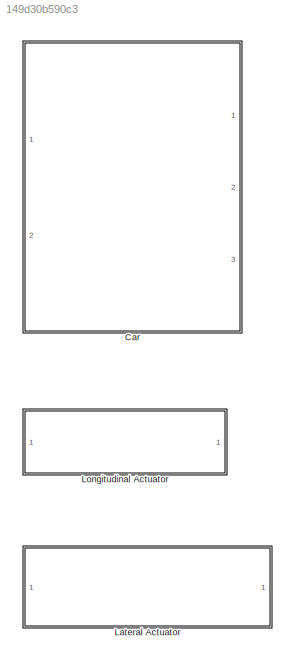
MODEL slx_149d30b590c3
KIND library
CONFIG AbsTol = auto
CONFIG FixedStep = auto
CONFIG MaxStep = auto
CONFIG MinStep = auto
CONFIG RelTol = 1e-3
CONFIG SampleTimeConstraint = Unconstrained
CONFIG Solver = ode45
CONFIG SolverMode = Auto
CONFIG SolverName = ode45
CONFIG StartTime = 0.0
CONFIG StopTime = 10.0
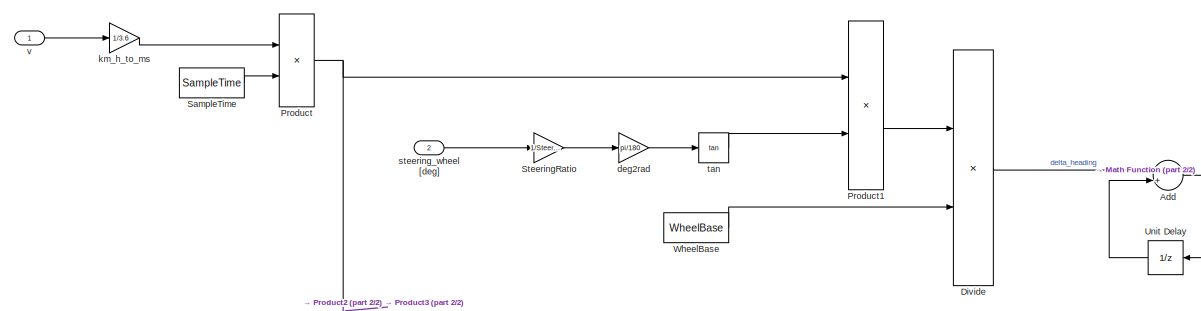
[diagram: Car - part 1/2, top left region]
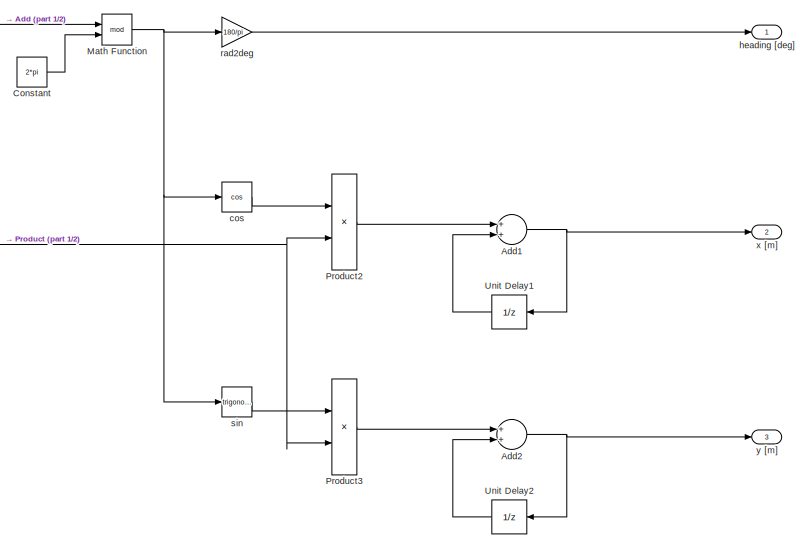
[diagram: Car - part 2/2, right side, full height]
BLOCK [SubSystem] Car
  Ports = [2, 3]
  RequestExecContextInheritance = off
  Variant = off
BLOCK [Sum] Car/Add
  InputSameDT = off
  OutDataTypeStr = Inherit: Inherit via internal rule
  Ports = [2, 1]
  SaturateOnIntegerOverflow = off
BLOCK [Sum] Car/Add1
  InputSameDT = off
  OutDataTypeStr = Inherit: Inherit via internal rule
  Ports = [2, 1]
  SaturateOnIntegerOverflow = off
BLOCK [Sum] Car/Add2
  InputSameDT = off
  OutDataTypeStr = Inherit: Inherit via internal rule
  Ports = [2, 1]
  SaturateOnIntegerOverflow = off
BLOCK [Constant] Car/Constant
  Value = 2*pi
BLOCK [Product] Car/Divide
  InputSameDT = off
  Inputs = */
  OutDataTypeStr = Inherit: Inherit via internal rule
  Ports = [2, 1]
  RndMeth = Floor
  SaturateOnIntegerOverflow = off
BLOCK [Math] Car/Math Function
  Operator = mod
  OutputSignalType = real
  Ports = [2, 1]
BLOCK [Product] Car/Product
  InputSameDT = off
  OutDataTypeStr = Inherit: Inherit via internal rule
  Ports = [2, 1]
  RndMeth = Floor
  SaturateOnIntegerOverflow = off
BLOCK [Product] Car/Product1
  InputSameDT = off
  OutDataTypeStr = Inherit: Inherit via internal rule
  Ports = [2, 1]
  RndMeth = Floor
  SaturateOnIntegerOverflow = off
BLOCK [Product] Car/Product2
  InputSameDT = off
  OutDataTypeStr = Inherit: Inherit via internal rule
  Ports = [2, 1]
  RndMeth = Floor
  SaturateOnIntegerOverflow = off
BLOCK [Product] Car/Product3
  InputSameDT = off
  OutDataTypeStr = Inherit: Inherit via internal rule
  Ports = [2, 1]
  RndMeth = Floor
  SaturateOnIntegerOverflow = off
BLOCK [Constant] Car/SampleTime
  Value = SampleTime
BLOCK [Gain] Car/SteeringRatio
  Gain = 1/SteeringRatio
  OutDataTypeStr = Inherit: Inherit via internal rule
  ParamDataTypeStr = Inherit: Inherit via internal rule
  SaturateOnIntegerOverflow = off
BLOCK [UnitDelay] Car/Unit Delay
  InitialCondition = deg2rad(InitialHeading)
  InputProcessing = Elements as channels (sample based)
  SampleTime = -1
BLOCK [UnitDelay] Car/Unit Delay1
  InputProcessing = Elements as channels (sample based)
  SampleTime = -1
BLOCK [UnitDelay] Car/Unit Delay2
  InputProcessing = Elements as channels (sample based)
  SampleTime = -1
BLOCK [Constant] Car/WheelBase
  Value = WheelBase
BLOCK [Trigonometry] Car/cos
  Operator = cos
  Ports = [1, 1]
BLOCK [Gain] Car/deg2rad
  Gain = pi/180
  OutDataTypeStr = Inherit: Inherit via internal rule
  ParamDataTypeStr = Inherit: Inherit via internal rule
  SaturateOnIntegerOverflow = off
BLOCK [Outport] Car/heading [deg]
  IconDisplay = Port number
BLOCK [Gain] Car/km_h_to_ms
  Gain = 1/3.6
  OutDataTypeStr = double
  ParamDataTypeStr = Inherit: Inherit via internal rule
  SaturateOnIntegerOverflow = off
BLOCK [Gain] Car/rad2deg
  Gain = 180/pi
  OutDataTypeStr = Inherit: Inherit via internal rule
  ParamDataTypeStr = Inherit: Inherit via internal rule
  SaturateOnIntegerOverflow = off
BLOCK [Trigonometry] Car/sin
  Ports = [1, 1]
BLOCK [Inport] Car/steering_wheel [deg]
  IconDisplay = Port number
  Port = 2
BLOCK [Trigonometry] Car/tan
  Operator = tan
  Ports = [1, 1]
BLOCK [Inport] Car/v
  IconDisplay = Port number
BLOCK [Outport] Car/x [m]
  IconDisplay = Port number
  Port = 2
BLOCK [Outport] Car/y [m]
  IconDisplay = Port number
  Port = 3
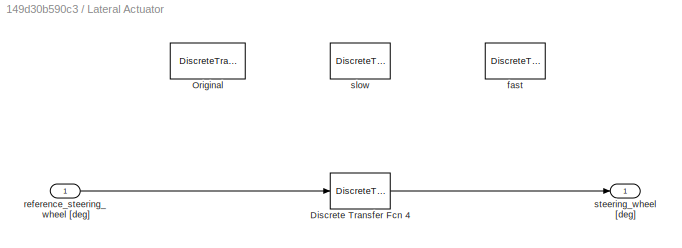
BLOCK [SubSystem] Lateral Actuator
  Ports = [1, 1]
  RequestExecContextInheritance = off
  Variant = off
BLOCK [DiscreteTransferFcn] Lateral Actuator/Discrete Transfer Fcn 4
  Denominator = [1, -0.8187]
  InputPortMap = u0
  Numerator = 0.2214 * [1, -0.1813]
  Ports = [1, 1]
BLOCK [DiscreteTransferFcn] Lateral Actuator/Original
  Commented = on
  Denominator = [1 -0.8 -0.14]
  InputPortMap = u0
  Numerator = [0.2 -0.14 0]
  Ports = [1, 1]
  SampleTime = 0.02
BLOCK [DiscreteTransferFcn] Lateral Actuator/fast
  Commented = on
  Denominator = [1 -0.8187]
  InputPortMap = u0
  Numerator = [ 0.1813]
  Ports = [1, 1]
  SampleTime = 0.02
BLOCK [Inport] Lateral Actuator/reference_steering_wheel [deg]
  IconDisplay = Port number
BLOCK [DiscreteTransferFcn] Lateral Actuator/slow
  Commented = on
  Denominator = [1 -0.9608]
  InputPortMap = u0
  Numerator = [ 0.03921]
  Ports = [1, 1]
  SampleTime = 0.02
BLOCK [Outport] Lateral Actuator/steering_wheel  [deg]
  IconDisplay = Port number
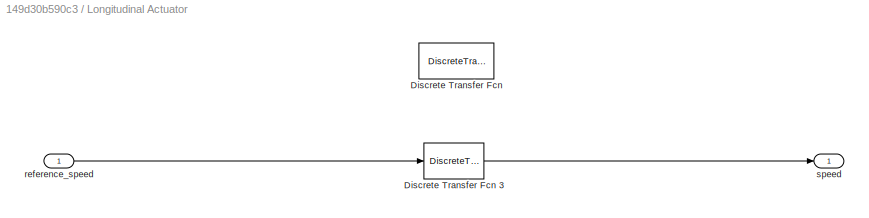
BLOCK [SubSystem] Longitudinal Actuator
  Ports = [1, 1]
  RequestExecContextInheritance = off
  Variant = off
BLOCK [DiscreteTransferFcn] Longitudinal Actuator/Discrete Transfer Fcn
  Commented = on
  Denominator = [1 -0.7 -0.276]
  InputPortMap = u0
  Numerator = [0.3 -0.276 0]
  Ports = [1, 1]
  SampleTime = 0.02
BLOCK [DiscreteTransferFcn] Longitudinal Actuator/Discrete Transfer Fcn 3
  Denominator = [1, -0.9048]
  InputPortMap = u0
  Numerator = 0.1052 * [1, -0.09516]
  Ports = [1, 1]
BLOCK [Inport] Longitudinal Actuator/reference_speed
  IconDisplay = Port number
BLOCK [Outport] Longitudinal Actuator/speed 
  IconDisplay = Port number
NET Car/Add1:1 -> Car/Unit Delay1:1, Car/x [m]:1
NET Car/Add2:1 -> Car/Unit Delay2:1, Car/y [m]:1
NET Car/Add:1 -> Car/Math Function:1, Car/Unit Delay:1
LINE Car/Constant:1 -> Car/Math Function:2
LINE Car/Divide:1 -> Car/Add:1
NET Car/Math Function:1 -> Car/cos:1, Car/rad2deg:1, Car/sin:1
LINE Car/Product1:1 -> Car/Divide:1
LINE Car/Product2:1 -> Car/Add1:1
LINE Car/Product3:1 -> Car/Add2:1
NET Car/Product:1 -> Car/Product1:1, Car/Product2:2, Car/Product3:2
LINE Car/SampleTime:1 -> Car/Product:2
LINE Car/SteeringRatio:1 -> Car/deg2rad:1
LINE Car/Unit Delay1:1 -> Car/Add1:2
LINE Car/Unit Delay2:1 -> Car/Add2:2
LINE Car/Unit Delay:1 -> Car/Add:2
LINE Car/WheelBase:1 -> Car/Divide:2
LINE Car/cos:1 -> Car/Product2:1
LINE Car/deg2rad:1 -> Car/tan:1
LINE Car/km_h_to_ms:1 -> Car/Product:1
LINE Car/rad2deg:1 -> Car/heading [deg]:1
LINE Car/sin:1 -> Car/Product3:1
LINE Car/steering_wheel [deg]:1 -> Car/SteeringRatio:1
LINE Car/tan:1 -> Car/Product1:2
LINE Car/v:1 -> Car/km_h_to_ms:1
LINE Lateral Actuator/Discrete Transfer Fcn 4:1 -> Lateral Actuator/steering_wheel  [deg]:1
LINE Lateral Actuator/reference_steering_wheel [deg]:1 -> Lateral Actuator/Discrete Transfer Fcn 4:1
LINE Longitudinal Actuator/Discrete Transfer Fcn 3:1 -> Longitudinal Actuator/speed :1
LINE Longitudinal Actuator/reference_speed:1 -> Longitudinal Actuator/Discrete Transfer Fcn 3:1
note: NET lines group one-source signal fan-out (src -> all destinations, sorted); 1:1 wires keep LINE
